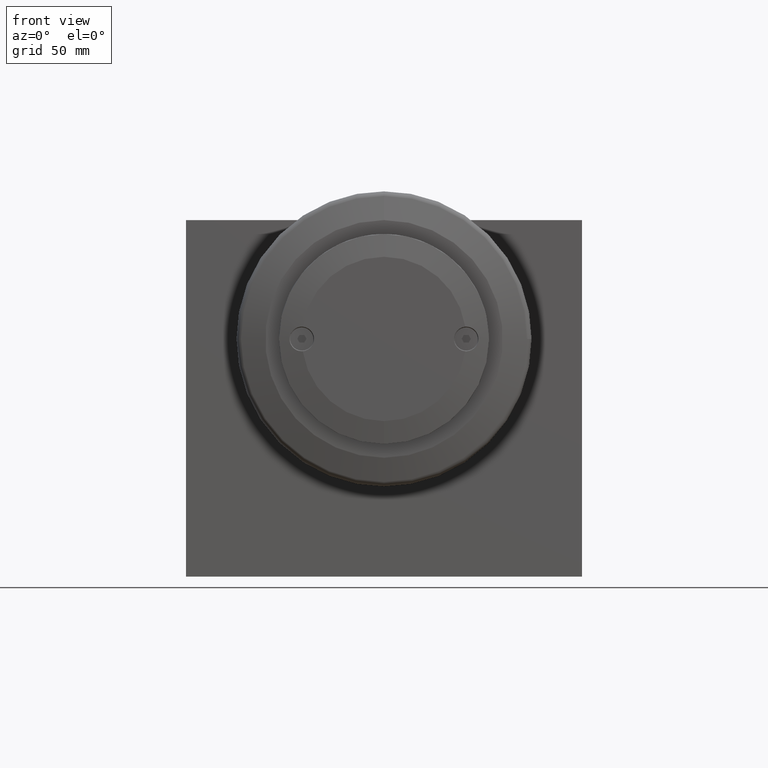
[diagram: clean part render]
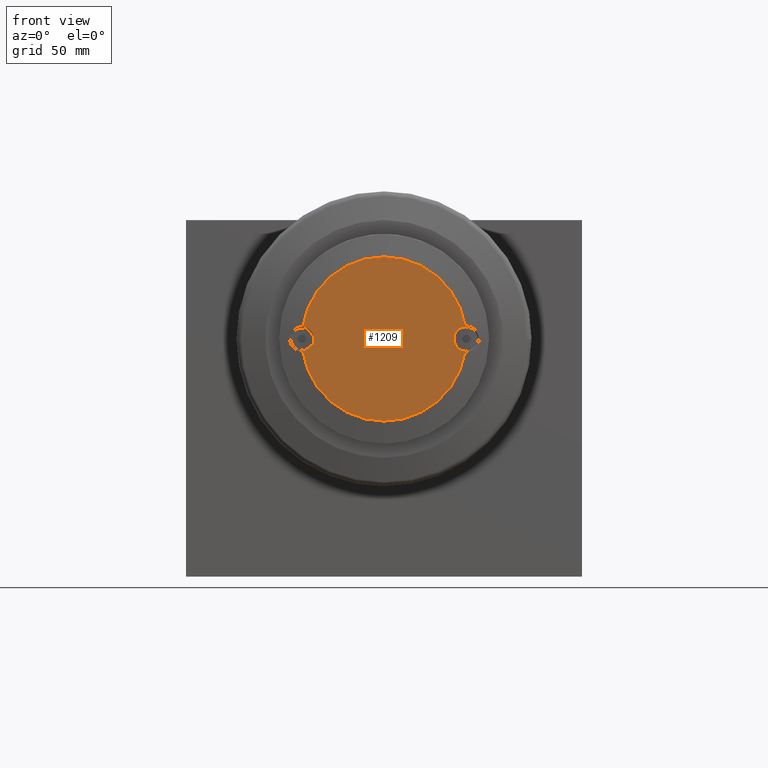
[diagram: same view with one face highlighted and labeled with its STEP entity id]
A machine part, front view. The second image highlights one B-rep face of the part: STEP entity #1209.
In plain terms, the highlighted planar face has unit normal (-0, -1, 0).
Its self-contained STEP definition (entity closure, byte-faithful):
#71=CIRCLE('',#1303,41.5);
#72=CIRCLE('',#1304,41.5);
#73=CIRCLE('',#1305,41.5);
#74=CIRCLE('',#1307,6.2);
#75=CIRCLE('',#1308,6.2);
#137=FACE_OUTER_BOUND('',#204,.T.);
#204=EDGE_LOOP('',(#857,#858,#859,#860,#861));
#518=VERTEX_POINT('',#1841);
#519=VERTEX_POINT('',#1843);
#521=VERTEX_POINT('',#1864);
#522=VERTEX_POINT('',#1869);
#524=VERTEX_POINT('',#1876);
#649=EDGE_CURVE('',#519,#518,#71,.T.);
#652=EDGE_CURVE('',#522,#521,#72,.T.);
#655=EDGE_CURVE('',#518,#524,#73,.T.);
#656=EDGE_CURVE('',#521,#519,#74,.T.);
#657=EDGE_CURVE('',#524,#522,#75,.T.);
#857=ORIENTED_EDGE('',*,*,#652,.T.);
#858=ORIENTED_EDGE('',*,*,#656,.T.);
#859=ORIENTED_EDGE('',*,*,#649,.T.);
#860=ORIENTED_EDGE('',*,*,#655,.T.);
#861=ORIENTED_EDGE('',*,*,#657,.T.);
#1166=PLANE('',#1306);
#1209=ADVANCED_FACE('',(#137),#1166,.T.);
#1303=AXIS2_PLACEMENT_3D('',#1844,#1473,#1474);
#1304=AXIS2_PLACEMENT_3D('',#1870,#1475,#1476);
#1305=AXIS2_PLACEMENT_3D('',#1895,#1477,#1478);
#1306=AXIS2_PLACEMENT_3D('',#1896,#1479,#1480);
#1307=AXIS2_PLACEMENT_3D('',#1897,#1481,#1482);
#1308=AXIS2_PLACEMENT_3D('',#1898,#1483,#1484);
#1473=DIRECTION('center_axis',(-9.24446373305873E-33,-1.,4.68242615620585E-47));
#1474=DIRECTION('ref_axis',(-9.39342312100021E-16,5.55079774991947E-47,
1.));
#1475=DIRECTION('center_axis',(-9.24446373305873E-33,-1.,4.68242615620585E-47));
#1476=DIRECTION('ref_axis',(-9.39342312100021E-16,5.55079774991947E-47,
1.));
#1477=DIRECTION('center_axis',(-9.24446373305873E-33,-1.,4.68242615620585E-47));
#1478=DIRECTION('ref_axis',(-9.39342312100021E-16,5.55079774991947E-47,
1.));
#1479=DIRECTION('center_axis',(-9.24446373305873E-33,-1.,4.68242615620585E-47));
#1480=DIRECTION('ref_axis',(-9.39342312100021E-16,5.55079774991947E-47,
1.));
#1481=DIRECTION('center_axis',(9.24446373305873E-33,1.,-4.68242615620585E-47));
#1482=DIRECTION('ref_axis',(9.39342312100021E-16,-5.55079774991947E-47,
-1.));
#1483=DIRECTION('center_axis',(9.24446373305873E-33,1.,-4.68242615620585E-47));
#1484=DIRECTION('ref_axis',(9.39342312100021E-16,-5.55079774991947E-47,
-1.));
#1841=CARTESIAN_POINT('',(100.,-62.,78.5));
#1843=CARTESIAN_POINT('',(58.9631325301205,-62.,113.817321918493));
#1844=CARTESIAN_POINT('Origin',(100.,-62.,120.));
#1864=CARTESIAN_POINT('',(58.9631325301205,-62.,126.182678081507));
#1869=CARTESIAN_POINT('',(141.03686746988,-62.,126.182678081507));
#1870=CARTESIAN_POINT('Origin',(100.,-62.,120.));
#1876=CARTESIAN_POINT('',(141.03686746988,-62.,113.817321918493));
#1895=CARTESIAN_POINT('Origin',(100.,-62.,120.));
#1896=CARTESIAN_POINT('Origin',(100.,-62.,120.));
#1897=CARTESIAN_POINT('Origin',(58.5,-62.,120.));
#1898=CARTESIAN_POINT('Origin',(141.5,-62.,120.));